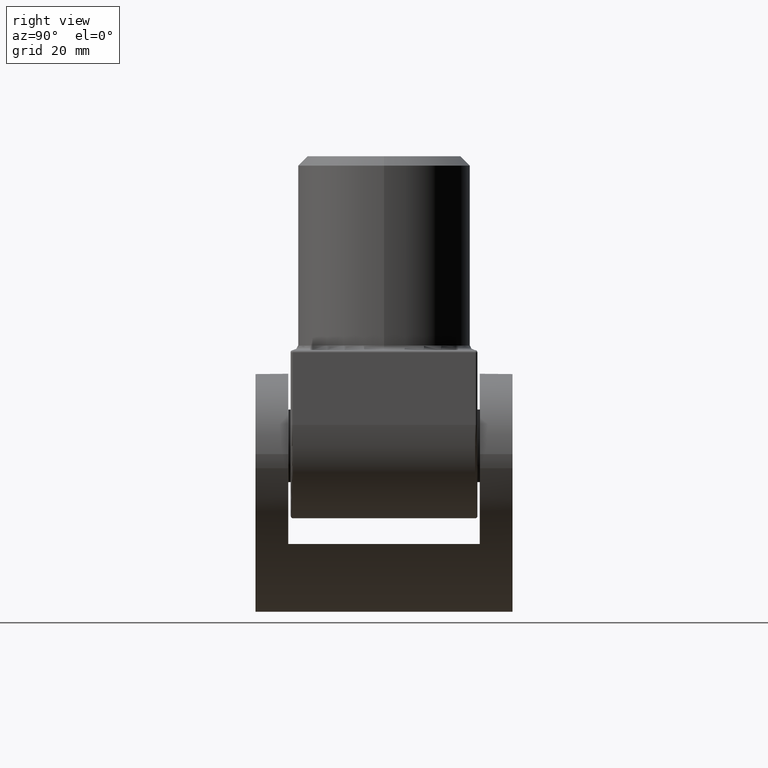
[diagram: clean part render]
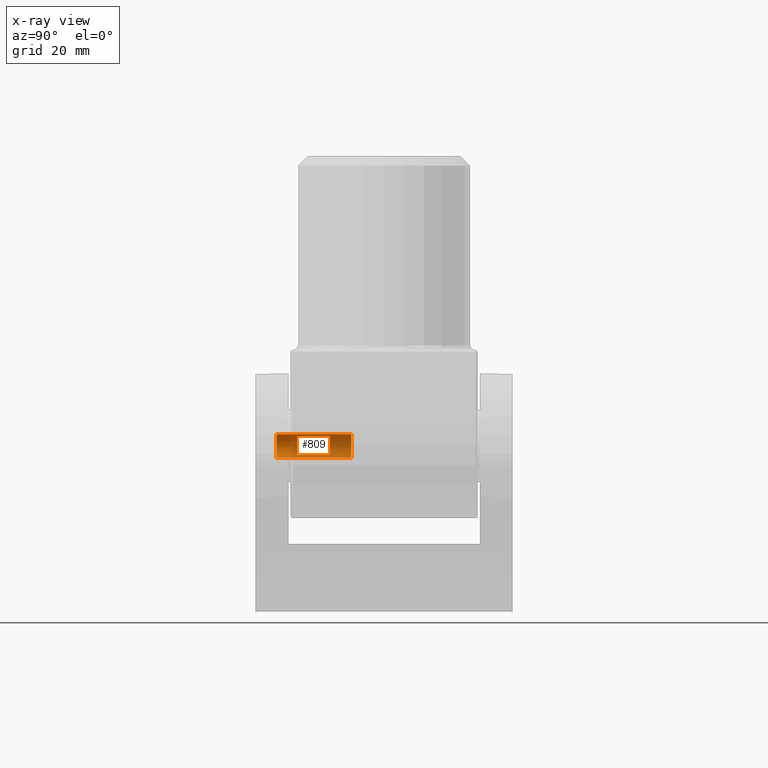
[diagram: x-ray — body ghosted, one internal face saturated and labeled with its STEP entity id]
A machine part, right view, then the same camera in x-ray: the body is ghosted and one INTERNAL B-rep face — a face not visible from any outside direction — is saturated and labeled: STEP entity #809.
In plain terms, the highlighted cylindrical surface (edge-blend (fillet) strip) has radius 2.5 mm, axis along (-0, -1, -0).
Its self-contained STEP definition (entity closure, byte-faithful):
#809 = ADVANCED_FACE ( 'NONE', ( #12048 ), #7203, .F. ) ;
#849 = VERTEX_POINT ( 'NONE', #18298 ) ;
#2044 = ORIENTED_EDGE ( 'NONE', *, *, #15922, .F. ) ;
#2320 = DIRECTION ( 'NONE',  ( -0.000000000000000000, -1.000000000000000000, -0.000000000000000000 ) ) ;
#3334 = EDGE_CURVE ( 'NONE', #8610, #21762, #19034, .T. ) ;
#3966 = VECTOR ( 'NONE', #10191, 1000.000000000000000 ) ;
#4214 = AXIS2_PLACEMENT_3D ( 'NONE', #10551, #13854, #15655 ) ;
#5496 = DIRECTION ( 'NONE',  ( 0.000000000000000000, 0.000000000000000000, -1.000000000000000000 ) ) ;
#5913 = LINE ( 'NONE', #20732, #17231 ) ;
#6100 = ORIENTED_EDGE ( 'NONE', *, *, #3334, .T. ) ;
#6331 = AXIS2_PLACEMENT_3D ( 'NONE', #6954, #21036, #5496 ) ;
#6954 = CARTESIAN_POINT ( 'NONE',  ( 0.000000000000000000, -23.50000000000000000, -20.50000000000000000 ) ) ;
#7203 = CYLINDRICAL_SURFACE ( 'NONE', #6331, 2.499999999999992006 ) ;
#8610 = VERTEX_POINT ( 'NONE', #14378 ) ;
#9081 = AXIS2_PLACEMENT_3D ( 'NONE', #19596, #2320, #14477 ) ;
#9863 = ORIENTED_EDGE ( 'NONE', *, *, #15714, .F. ) ;
#10191 = DIRECTION ( 'NONE',  ( -0.000000000000000000, -1.000000000000000000, -0.000000000000000000 ) ) ;
#10551 = CARTESIAN_POINT ( 'NONE',  ( 0.000000000000000000, -23.00000000000000711, -20.50000000000000000 ) ) ;
#12048 = FACE_OUTER_BOUND ( 'NONE', #14740, .T. ) ;
#12101 = CIRCLE ( 'NONE', #9081, 2.499999999999995115 ) ;
#13854 = DIRECTION ( 'NONE',  ( 0.000000000000000000, -1.000000000000000000, 0.000000000000000000 ) ) ;
#14061 = VERTEX_POINT ( 'NONE', #17234 ) ;
#14378 = CARTESIAN_POINT ( 'NONE',  ( 3.061616997868375253E-16, -23.00000000000000711, -18.00000000000001066 ) ) ;
#14477 = DIRECTION ( 'NONE',  ( 0.000000000000000000, 0.000000000000000000, -1.000000000000000000 ) ) ;
#14740 = EDGE_LOOP ( 'NONE', ( #2044, #20602, #6100, #9863 ) ) ;
#15285 = LINE ( 'NONE', #17403, #3966 ) ;
#15655 = DIRECTION ( 'NONE',  ( 0.000000000000000000, 0.000000000000000000, 1.000000000000000000 ) ) ;
#15714 = EDGE_CURVE ( 'NONE', #849, #21762, #5913, .T. ) ;
#15922 = EDGE_CURVE ( 'NONE', #14061, #849, #12101, .T. ) ;
#17231 = VECTOR ( 'NONE', #22230, 1000.000000000000000 ) ;
#17234 = CARTESIAN_POINT ( 'NONE',  ( 3.061616997868377718E-16, -6.999999999999999112, -18.00000000000000711 ) ) ;
#17403 = CARTESIAN_POINT ( 'NONE',  ( 3.061616997868373773E-16, -23.50000000000000000, -18.00000000000001066 ) ) ;
#18076 = EDGE_CURVE ( 'NONE', #14061, #8610, #15285, .T. ) ;
#18298 = CARTESIAN_POINT ( 'NONE',  ( 0.000000000000000000, -6.999999999999999112, -22.99999999999999645 ) ) ;
#19034 = CIRCLE ( 'NONE', #4214, 2.499999999999992006 ) ;
#19596 = CARTESIAN_POINT ( 'NONE',  ( 0.000000000000000000, -6.999999999999999112, -20.50000000000000000 ) ) ;
#20602 = ORIENTED_EDGE ( 'NONE', *, *, #18076, .T. ) ;
#20710 = CARTESIAN_POINT ( 'NONE',  ( 0.000000000000000000, -23.00000000000000711, -22.99999999999999289 ) ) ;
#20732 = CARTESIAN_POINT ( 'NONE',  ( 0.000000000000000000, -23.50000000000000000, -22.99999999999999289 ) ) ;
#21036 = DIRECTION ( 'NONE',  ( -0.000000000000000000, -1.000000000000000000, -0.000000000000000000 ) ) ;
#21762 = VERTEX_POINT ( 'NONE', #20710 ) ;
#22230 = DIRECTION ( 'NONE',  ( -0.000000000000000000, -1.000000000000000000, -0.000000000000000000 ) ) ;